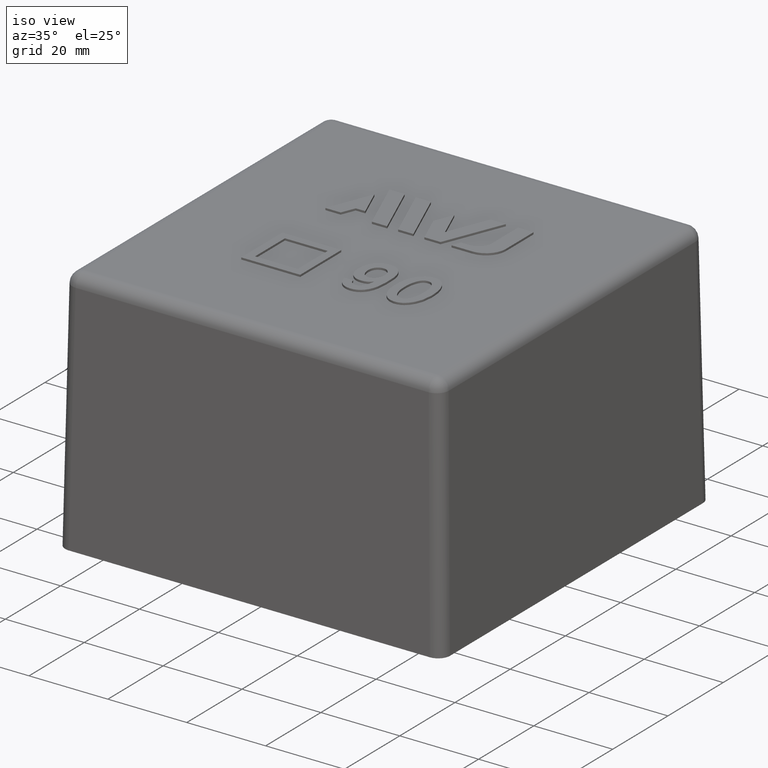
[diagram: clean part render]
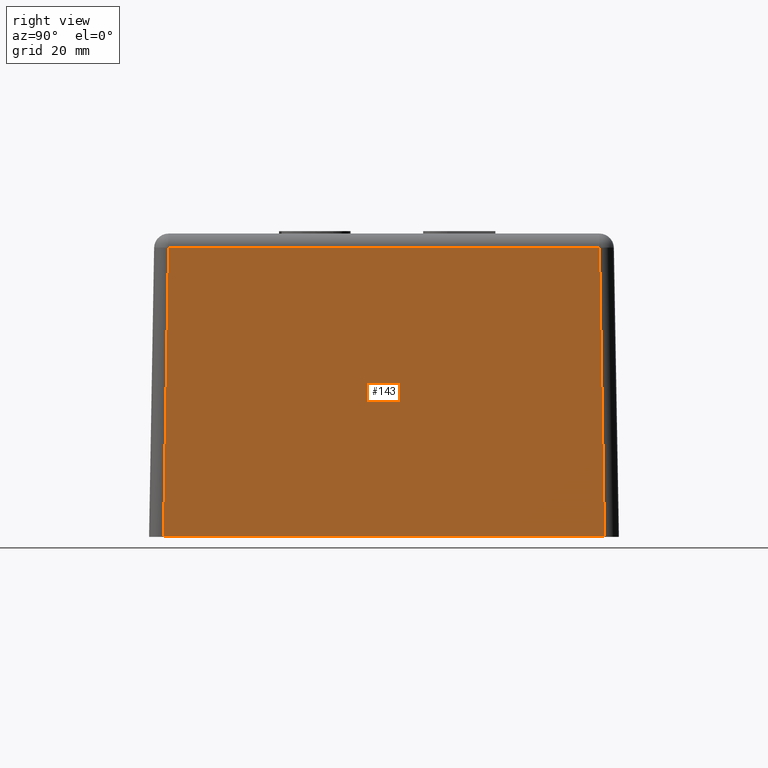
[diagram: tour spotlight — one face highlighted and labeled with its STEP entity id]
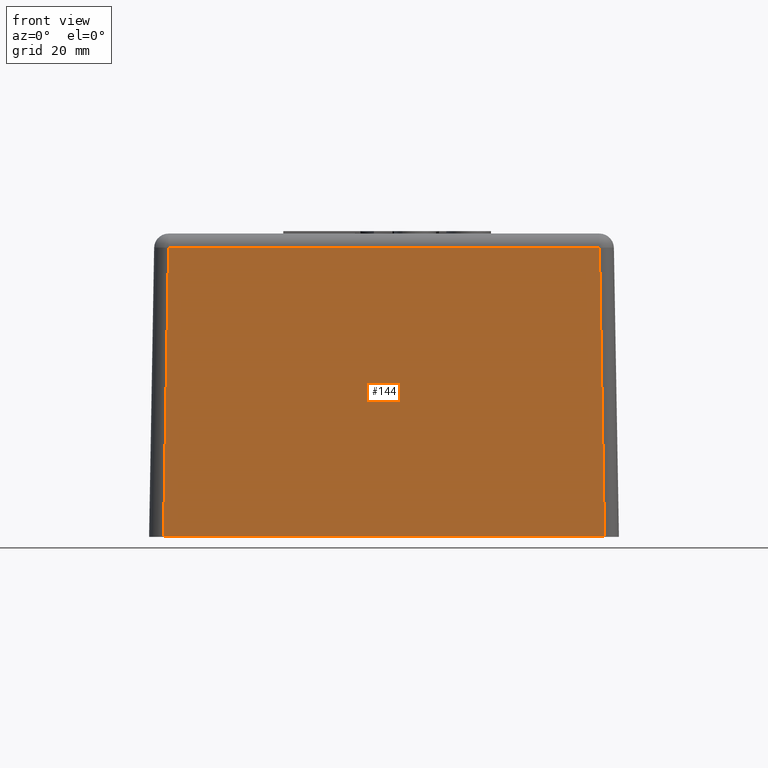
[diagram: tour spotlight — one face highlighted and labeled with its STEP entity id]
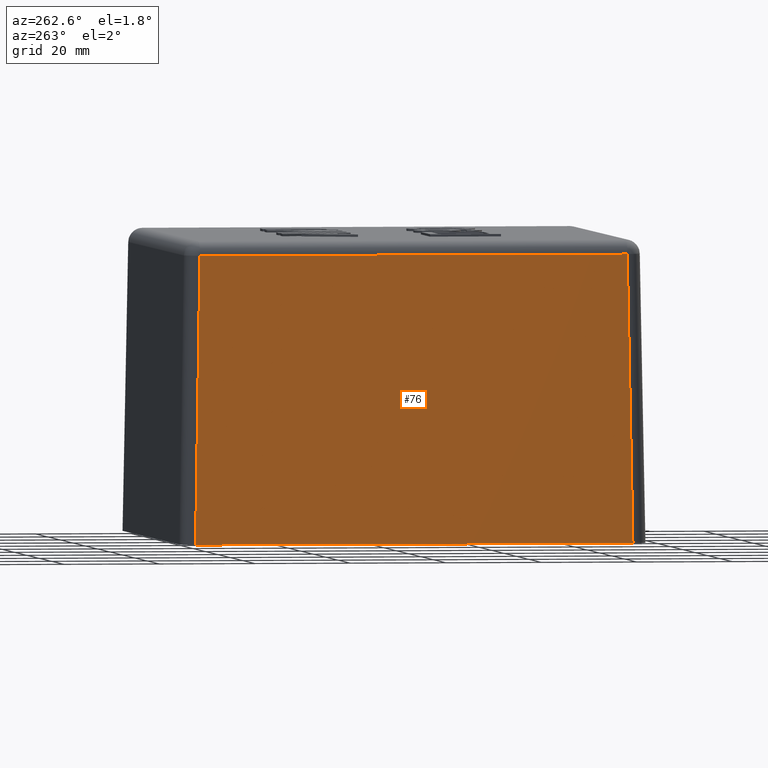
[diagram: tour spotlight — one face highlighted and labeled with its STEP entity id]
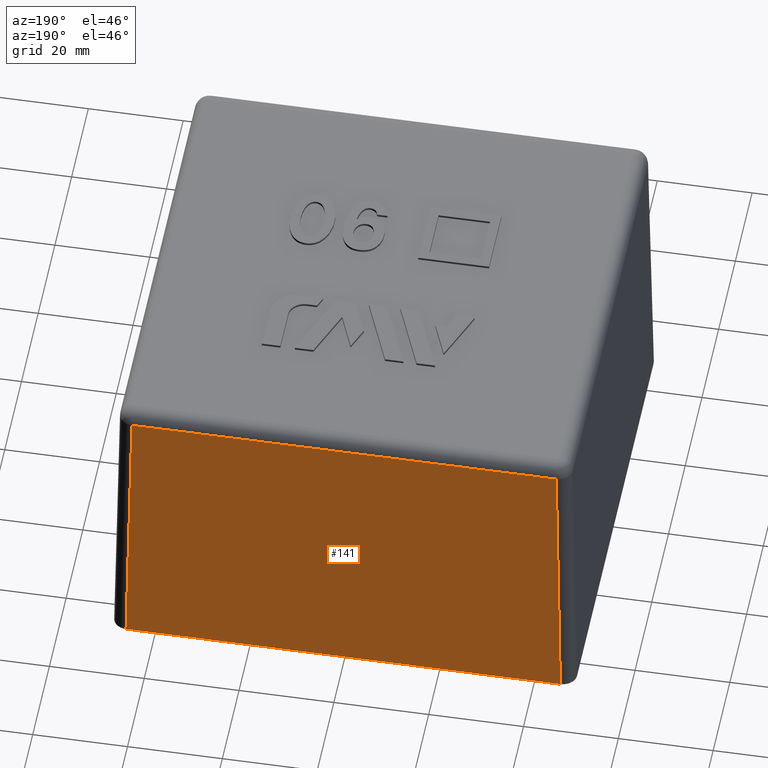
[diagram: tour spotlight — one face highlighted and labeled with its STEP entity id]
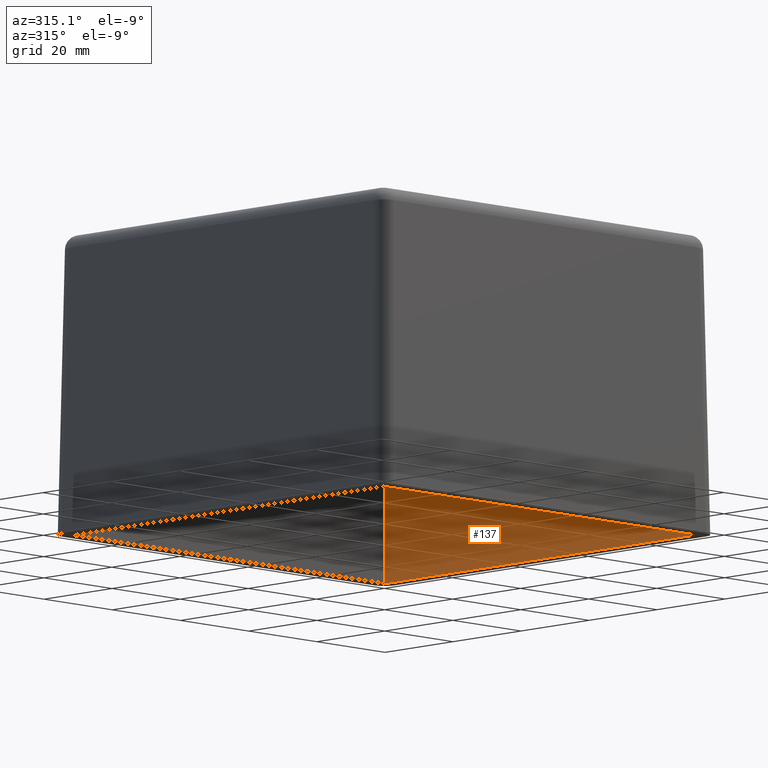
[diagram: tour spotlight — one face highlighted and labeled with its STEP entity id]
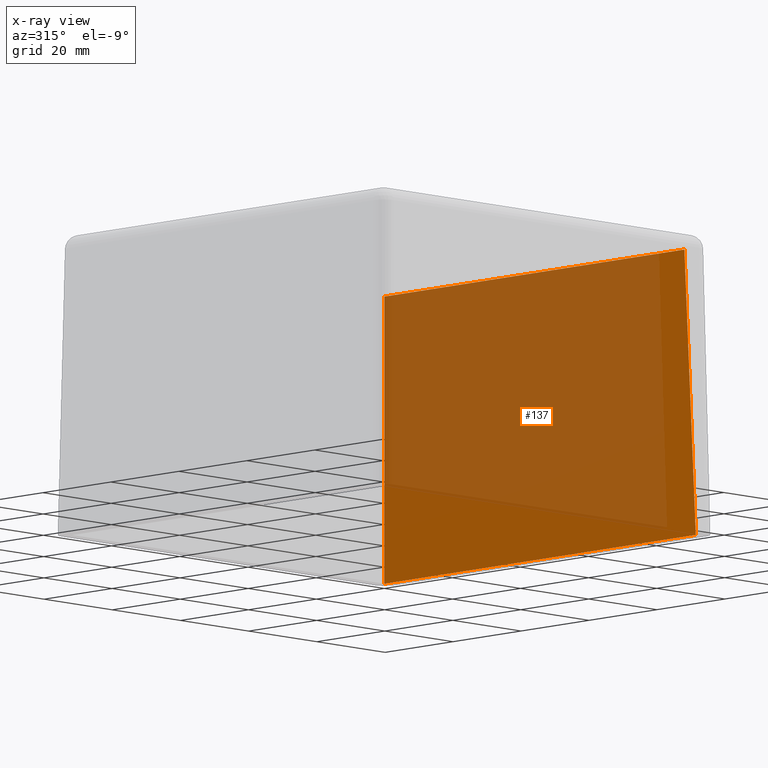
[diagram: x-ray of the same camera — body ghosted, this tour face saturated]
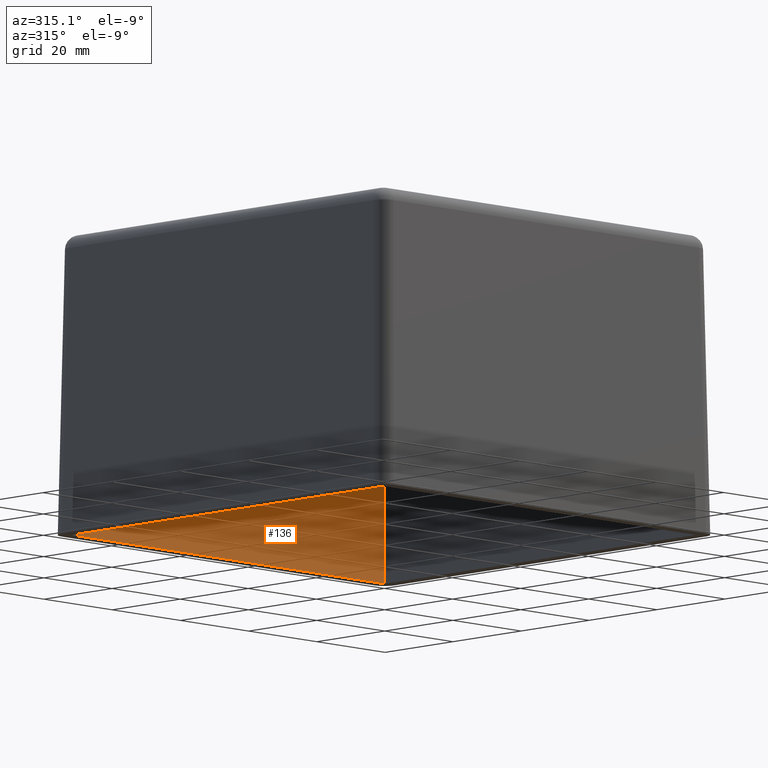
[diagram: tour spotlight — one face highlighted and labeled with its STEP entity id]
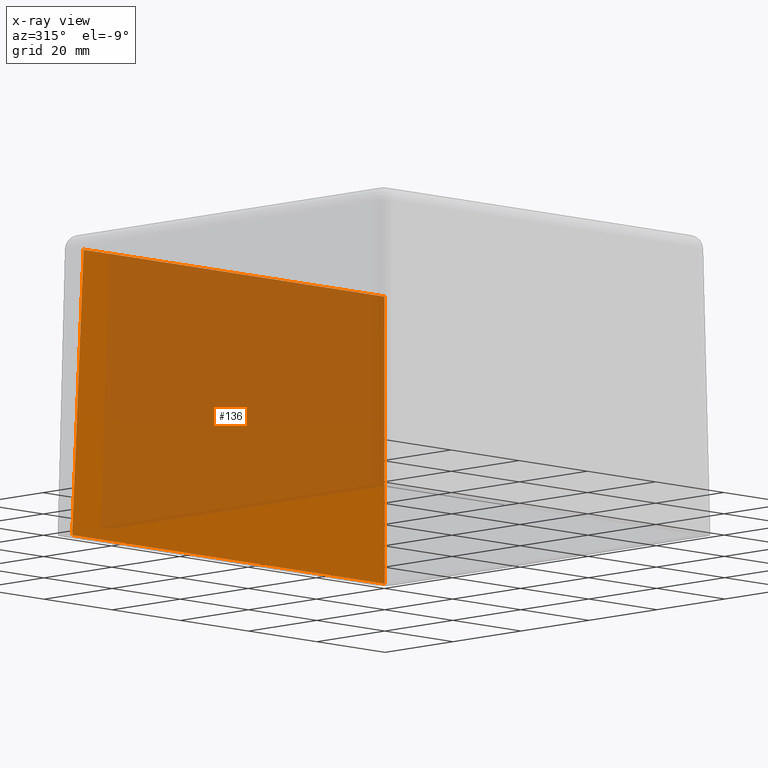
[diagram: x-ray of the same camera — body ghosted, this tour face saturated]
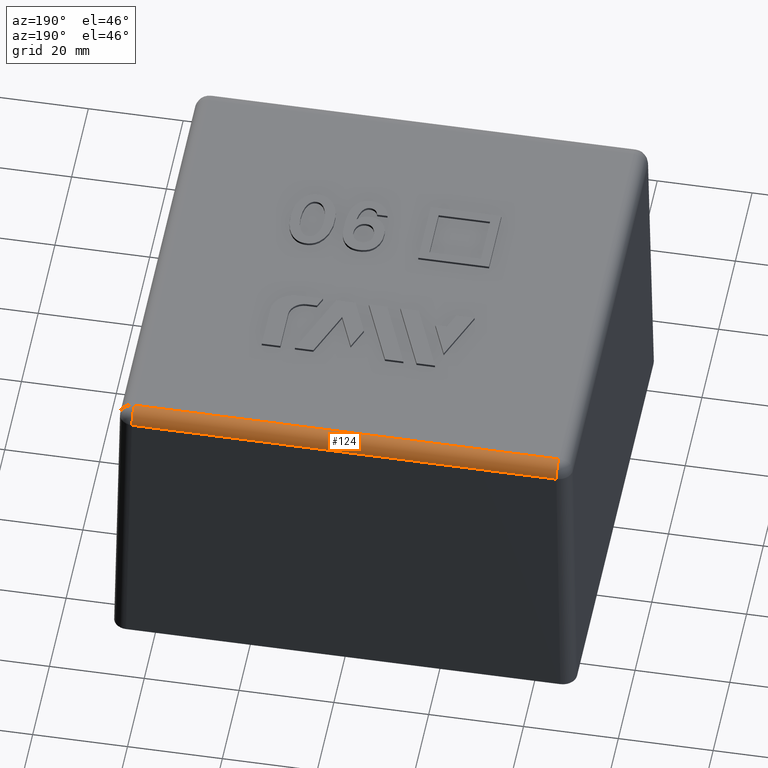
[diagram: tour spotlight — one face highlighted and labeled with its STEP entity id]
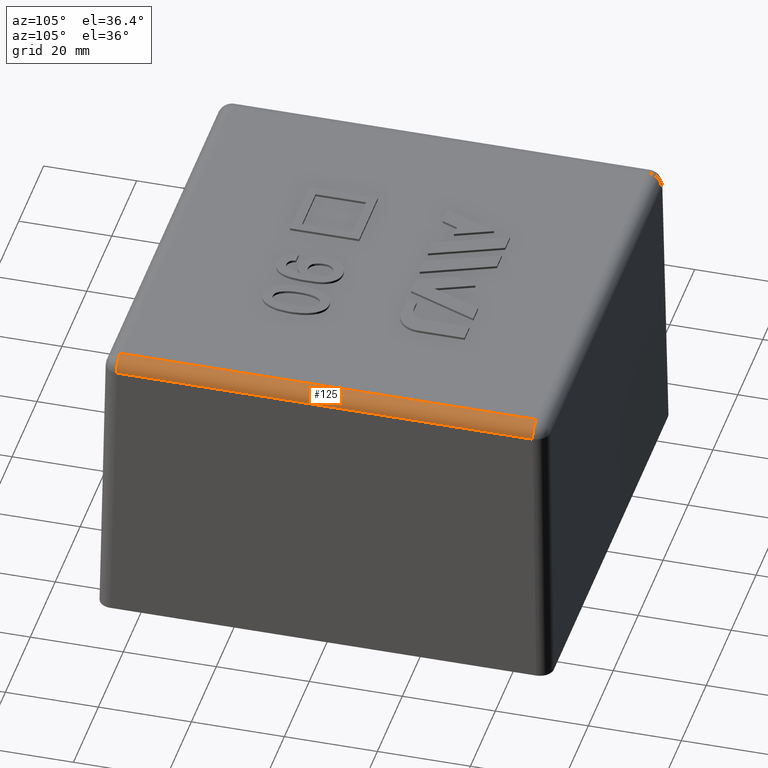
[diagram: tour spotlight — one face highlighted and labeled with its STEP entity id]
A machine part: a face-by-face anatomy tour. The part has 77 B-rep faces; the first image is the clean iso view, then the 8 largest visible faces are spotlighted one at a time (largest first), each with its STEP entity span.

Face 1 — right view, entity #143. In plain terms, the highlighted planar face has unit normal (0.9998, 0, 0.0175).
Definition (entity closure, byte-faithful):
#143 = ADVANCED_FACE( '', ( #299 ), #300, .T. );
#299 = FACE_OUTER_BOUND( '', #471, .T. );
#300 = PLANE( '', #472 );
#471 = EDGE_LOOP( '', ( #1054, #1055, #1056, #1057 ) );
#472 = AXIS2_PLACEMENT_3D( '', #1058, #1059, #1060 );
#1054 = ORIENTED_EDGE( '', *, *, #1301, .T. );
#1055 = ORIENTED_EDGE( '', *, *, #1286, .T. );
#1056 = ORIENTED_EDGE( '', *, *, #1297, .T. );
#1057 = ORIENTED_EDGE( '', *, *, #1318, .T. );
#1058 = CARTESIAN_POINT( '', ( 48.8000000000000, -48.8000000000000, 0.000000000000000 ) );
#1059 = DIRECTION( '', ( 0.999847695156391, 0.000000000000000, 0.0174524064372835 ) );
#1060 = DIRECTION( '', ( 0.0174524064372835, 0.000000000000000, -0.999847695156391 ) );
#1286 = EDGE_CURVE( '', #1543, #1551, #1553, .F. );
#1297 = EDGE_CURVE( '', #1551, #1567, #1568, .F. );
#1301 = EDGE_CURVE( '', #1574, #1543, #1575, .T. );
#1318 = EDGE_CURVE( '', #1567, #1574, #1601, .F. );
#1543 = VERTEX_POINT( '', #2049 );
#1551 = VERTEX_POINT( '', #2058 );
#1553 = LINE( '', #2060, #2061 );
#1567 = VERTEX_POINT( '', #2077 );
#1568 = LINE( '', #2078, #2079 );
#1574 = VERTEX_POINT( '', #2087 );
#1575 = LINE( '', #2088, #2089 );
#1601 = LINE( '', #2129, #2130 );
#2049 = CARTESIAN_POINT( '', ( 47.7517822056444, 44.7522391201752, 60.0523572193119 ) );
#2058 = CARTESIAN_POINT( '', ( 47.7517822056444, -44.7522391201752, 60.0523572193118 ) );
#2060 = CARTESIAN_POINT( '', ( 47.7517822056444, -44.7007878240531, 60.0523572193118 ) );
#2061 = VECTOR( '', #2354, 1000.00000000000 );
#2077 = CARTESIAN_POINT( '', ( 48.8000000000000, -45.8004569145308, 0.000000000000000 ) );
#2078 = CARTESIAN_POINT( '', ( 48.8009133421097, -45.8013702566405, -0.0523253344201976 ) );
#2079 = VECTOR( '', #2381, 1000.00000000000 );
#2087 = CARTESIAN_POINT( '', ( 48.8000000000000, 45.8004569145308, 0.000000000000000 ) );
#2088 = CARTESIAN_POINT( '', ( 48.7711947525225, 45.7716516670532, 1.65025152275220 ) );
#2089 = VECTOR( '', #2387, 1000.00000000000 );
#2129 = CARTESIAN_POINT( '', ( 48.8000000000000, -48.8000000000000, 0.000000000000000 ) );
#2130 = VECTOR( '', #2408, 1000.00000000000 );
#2354 = DIRECTION( '', ( 0.000000000000000, 1.00000000000000, 0.000000000000000 ) );
#2381 = DIRECTION( '', ( -0.0174497491606827, 0.0174497491606827, 0.999695459881887 ) );
#2387 = DIRECTION( '', ( -0.0174497491606827, -0.0174497491606827, 0.999695459881887 ) );
#2408 = DIRECTION( '', ( 0.000000000000000, -1.00000000000000, 0.000000000000000 ) );

Face 2 — front view, entity #144. In plain terms, the highlighted planar face has unit normal (0, -0.9998, 0.0175).
Definition (entity closure, byte-faithful):
#144 = ADVANCED_FACE( '', ( #301 ), #302, .T. );
#301 = FACE_OUTER_BOUND( '', #473, .T. );
#302 = PLANE( '', #474 );
#473 = EDGE_LOOP( '', ( #1061, #1062, #1063, #1064 ) );
#474 = AXIS2_PLACEMENT_3D( '', #1065, #1066, #1067 );
#1061 = ORIENTED_EDGE( '', *, *, #1298, .T. );
#1062 = ORIENTED_EDGE( '', *, *, #1293, .T. );
#1063 = ORIENTED_EDGE( '', *, *, #1295, .T. );
#1064 = ORIENTED_EDGE( '', *, *, #1319, .T. );
#1065 = CARTESIAN_POINT( '', ( -48.8000000000000, -48.8000000000000, 0.000000000000000 ) );
#1066 = DIRECTION( '', ( 0.000000000000000, -0.999847695156391, 0.0174524064372835 ) );
#1067 = DIRECTION( '', ( 0.000000000000000, -0.0174524064372835, -0.999847695156391 ) );
#1293 = EDGE_CURVE( '', #1556, #1560, #1562, .F. );
#1295 = EDGE_CURVE( '', #1560, #1564, #1565, .F. );
#1298 = EDGE_CURVE( '', #1569, #1556, #1570, .T. );
#1319 = EDGE_CURVE( '', #1564, #1569, #1602, .F. );
#1556 = VERTEX_POINT( '', #2064 );
#1560 = VERTEX_POINT( '', #2068 );
#1562 = LINE( '', #2070, #2071 );
#1564 = VERTEX_POINT( '', #2073 );
#1565 = LINE( '', #2074, #2075 );
#1569 = VERTEX_POINT( '', #2080 );
#1570 = LINE( '', #2081, #2082 );
#1602 = LINE( '', #2131, #2132 );
#2064 = CARTESIAN_POINT( '', ( 44.7522391201752, -47.7517822056444, 60.0523572193119 ) );
#2068 = CARTESIAN_POINT( '', ( -44.7522391201752, -47.7517822056444, 60.0523572193118 ) );
#2070 = CARTESIAN_POINT( '', ( -44.7007878240531, -47.7517822056444, 60.0523572193118 ) );
#2071 = VECTOR( '', #2373, 1000.00000000000 );
#2073 = CARTESIAN_POINT( '', ( -45.8004569145308, -48.8000000000000, 0.000000000000000 ) );
#2074 = CARTESIAN_POINT( '', ( -45.8013702566405, -48.8009133421097, -0.0523253344201976 ) );
#2075 = VECTOR( '', #2377, 1000.00000000000 );
#2080 = CARTESIAN_POINT( '', ( 45.8004569145308, -48.8000000000000, 0.000000000000000 ) );
#2081 = CARTESIAN_POINT( '', ( 45.7716516670533, -48.7711947525225, 1.65025152275220 ) );
#2082 = VECTOR( '', #2382, 1000.00000000000 );
#2131 = CARTESIAN_POINT( '', ( -48.8000000000000, -48.8000000000000, 0.000000000000000 ) );
#2132 = VECTOR( '', #2409, 1000.00000000000 );
#2373 = DIRECTION( '', ( 1.00000000000000, 0.000000000000000, 0.000000000000000 ) );
#2377 = DIRECTION( '', ( 0.0174497491606827, 0.0174497491606827, 0.999695459881887 ) );
#2382 = DIRECTION( '', ( -0.0174497491606827, 0.0174497491606827, 0.999695459881887 ) );
#2409 = DIRECTION( '', ( -1.00000000000000, 0.000000000000000, 0.000000000000000 ) );

Face 3 — auxiliary view, entity #76. In plain terms, the highlighted planar face has unit normal (-0.9998, 0, 0.0175).
Definition (entity closure, byte-faithful):
#76 = ADVANCED_FACE( '', ( #163 ), #164, .T. );
#163 = FACE_OUTER_BOUND( '', #332, .T. );
#164 = PLANE( '', #333 );
#332 = EDGE_LOOP( '', ( #541, #542, #543, #544 ) );
#333 = AXIS2_PLACEMENT_3D( '', #545, #546, #547 );
#541 = ORIENTED_EDGE( '', *, *, #1193, .T. );
#542 = ORIENTED_EDGE( '', *, *, #1194, .T. );
#543 = ORIENTED_EDGE( '', *, *, #1195, .T. );
#544 = ORIENTED_EDGE( '', *, *, #1196, .T. );
#545 = CARTESIAN_POINT( '', ( -48.8000000000000, -48.8000000000000, 0.000000000000000 ) );
#546 = DIRECTION( '', ( -0.999847695156391, 0.000000000000000, 0.0174524064372835 ) );
#547 = DIRECTION( '', ( 0.0174524064372835, 0.000000000000000, 0.999847695156391 ) );
#1193 = EDGE_CURVE( '', #1408, #1409, #1410, .T. );
#1194 = EDGE_CURVE( '', #1409, #1411, #1412, .F. );
#1195 = EDGE_CURVE( '', #1411, #1413, #1414, .F. );
#1196 = EDGE_CURVE( '', #1413, #1408, #1415, .F. );
#1408 = VERTEX_POINT( '', #1786 );
#1409 = VERTEX_POINT( '', #1787 );
#1410 = LINE( '', #1788, #1789 );
#1411 = VERTEX_POINT( '', #1790 );
#1412 = LINE( '', #1791, #1792 );
#1413 = VERTEX_POINT( '', #1793 );
#1414 = LINE( '', #1794, #1795 );
#1415 = LINE( '', #1796, #1797 );
#1786 = CARTESIAN_POINT( '', ( -48.8000000000000, -45.8004569145308, 0.000000000000000 ) );
#1787 = CARTESIAN_POINT( '', ( -47.7517822056444, -44.7522391201752, 60.0523572193118 ) );
#1788 = CARTESIAN_POINT( '', ( -48.8009133421097, -45.8013702566405, -0.0523253344201975 ) );
#1789 = VECTOR( '', #2262, 1000.00000000000 );
#1790 = CARTESIAN_POINT( '', ( -47.7517822056444, 44.7522391201752, 60.0523572193119 ) );
#1791 = CARTESIAN_POINT( '', ( -47.7517822056444, 44.7007878240531, 60.0523572193118 ) );
#1792 = VECTOR( '', #2263, 1000.00000000000 );
#1793 = CARTESIAN_POINT( '', ( -48.8000000000000, 45.8004569145308, 0.000000000000000 ) );
#1794 = CARTESIAN_POINT( '', ( -48.7711947525225, 45.7716516670532, 1.65025152275220 ) );
#1795 = VECTOR( '', #2264, 1000.00000000000 );
#1796 = CARTESIAN_POINT( '', ( -48.8000000000000, -48.8000000000000, 0.000000000000000 ) );
#1797 = VECTOR( '', #2265, 1000.00000000000 );
#2262 = DIRECTION( '', ( 0.0174497491606827, 0.0174497491606827, 0.999695459881887 ) );
#2263 = DIRECTION( '', ( 0.000000000000000, -1.00000000000000, 0.000000000000000 ) );
#2264 = DIRECTION( '', ( 0.0174497491606827, -0.0174497491606827, 0.999695459881887 ) );
#2265 = DIRECTION( '', ( 0.000000000000000, 1.00000000000000, 0.000000000000000 ) );

Face 4 — auxiliary view, entity #141. In plain terms, the highlighted planar face has unit normal (0, 0.9998, 0.0175).
Definition (entity closure, byte-faithful):
#141 = ADVANCED_FACE( '', ( #295 ), #296, .T. );
#295 = FACE_OUTER_BOUND( '', #467, .T. );
#296 = PLANE( '', #468 );
#467 = EDGE_LOOP( '', ( #1043, #1044, #1045, #1046 ) );
#468 = AXIS2_PLACEMENT_3D( '', #1047, #1048, #1049 );
#1043 = ORIENTED_EDGE( '', *, *, #1303, .T. );
#1044 = ORIENTED_EDGE( '', *, *, #1284, .T. );
#1045 = ORIENTED_EDGE( '', *, *, #1300, .T. );
#1046 = ORIENTED_EDGE( '', *, *, #1317, .T. );
#1047 = CARTESIAN_POINT( '', ( -48.8000000000000, 48.7999999999999, 0.000000000000000 ) );
#1048 = DIRECTION( '', ( 0.000000000000000, 0.999847695156391, 0.0174524064372835 ) );
#1049 = DIRECTION( '', ( 0.000000000000000, -0.0174524064372835, 0.999847695156391 ) );
#1284 = EDGE_CURVE( '', #1548, #1545, #1550, .F. );
#1300 = EDGE_CURVE( '', #1545, #1572, #1573, .F. );
#1303 = EDGE_CURVE( '', #1577, #1548, #1578, .T. );
#1317 = EDGE_CURVE( '', #1572, #1577, #1600, .F. );
#1545 = VERTEX_POINT( '', #2051 );
#1548 = VERTEX_POINT( '', #2054 );
#1550 = LINE( '', #2056, #2057 );
#1572 = VERTEX_POINT( '', #2084 );
#1573 = LINE( '', #2085, #2086 );
#1577 = VERTEX_POINT( '', #2091 );
#1578 = LINE( '', #2092, #2093 );
#1600 = LINE( '', #2127, #2128 );
#2051 = CARTESIAN_POINT( '', ( 44.7522391201752, 47.7517822056443, 60.0523572193119 ) );
#2054 = CARTESIAN_POINT( '', ( -44.7522391201752, 47.7517822056443, 60.0523572193118 ) );
#2056 = CARTESIAN_POINT( '', ( 44.7007878240531, 47.7517822056443, 60.0523572193118 ) );
#2057 = VECTOR( '', #2350, 1000.00000000000 );
#2084 = CARTESIAN_POINT( '', ( 45.8004569145308, 48.7999999999999, 0.000000000000000 ) );
#2085 = CARTESIAN_POINT( '', ( 45.7716516670533, 48.7711947525224, 1.65025152275220 ) );
#2086 = VECTOR( '', #2386, 1000.00000000000 );
#2091 = CARTESIAN_POINT( '', ( -45.8004569145308, 48.7999999999999, 0.000000000000000 ) );
#2092 = CARTESIAN_POINT( '', ( -45.8013702566405, 48.8009133421096, -0.0523253344201975 ) );
#2093 = VECTOR( '', #2391, 1000.00000000000 );
#2127 = CARTESIAN_POINT( '', ( -48.8000000000000, 48.7999999999999, 0.000000000000000 ) );
#2128 = VECTOR( '', #2407, 1000.00000000000 );
#2350 = DIRECTION( '', ( -1.00000000000000, 0.000000000000000, 0.000000000000000 ) );
#2386 = DIRECTION( '', ( -0.0174497491606827, -0.0174497491606827, 0.999695459881887 ) );
#2391 = DIRECTION( '', ( 0.0174497491606827, -0.0174497491606827, 0.999695459881887 ) );
#2407 = DIRECTION( '', ( 1.00000000000000, 0.000000000000000, 0.000000000000000 ) );

Face 5 — auxiliary view, entity #137. An x-ray twin of the same camera follows (body ghosted, this face saturated) — the face is partly hidden behind the body. In plain terms, the highlighted planar face has unit normal (0.9996, 0, 0.0279).
Definition (entity closure, byte-faithful):
#137 = ADVANCED_FACE( '', ( #286 ), #287, .F. );
#286 = FACE_OUTER_BOUND( '', #458, .T. );
#287 = PLANE( '', #459 );
#458 = EDGE_LOOP( '', ( #1007, #1008, #1009, #1010 ) );
#459 = AXIS2_PLACEMENT_3D( '', #1011, #1012, #1013 );
#1007 = ORIENTED_EDGE( '', *, *, #1312, .F. );
#1008 = ORIENTED_EDGE( '', *, *, #1313, .F. );
#1009 = ORIENTED_EDGE( '', *, *, #1307, .T. );
#1010 = ORIENTED_EDGE( '', *, *, #1310, .T. );
#1011 = CARTESIAN_POINT( '', ( 45.8000000000000, -45.8000000000000, 0.000000000000000 ) );
#1012 = DIRECTION( '', ( 0.999610115040354, 0.000000000000000, 0.0279216387235689 ) );
#1013 = DIRECTION( '', ( 0.0279216387235689, 0.000000000000000, -0.999610115040354 ) );
#1307 = EDGE_CURVE( '', #1585, #1583, #1586, .F. );
#1310 = EDGE_CURVE( '', #1583, #1588, #1591, .T. );
#1312 = EDGE_CURVE( '', #1593, #1588, #1594, .F. );
#1313 = EDGE_CURVE( '', #1585, #1593, #1595, .T. );
#1583 = VERTEX_POINT( '', #2099 );
#1585 = VERTEX_POINT( '', #2102 );
#1586 = LINE( '', #2103, #2104 );
#1588 = VERTEX_POINT( '', #2107 );
#1591 = LINE( '', #2111, #2112 );
#1593 = VERTEX_POINT( '', #2115 );
#1594 = LINE( '', #2116, #2117 );
#1595 = LINE( '', #2118, #2119 );
#2099 = CARTESIAN_POINT( '', ( 44.1240482482047, 44.1240482482047, 60.0000000000000 ) );
#2102 = CARTESIAN_POINT( '', ( 44.1240482482047, -44.1240482482048, 60.0000000000000 ) );
#2103 = CARTESIAN_POINT( '', ( 44.1240482482047, -45.8000000000000, 60.0000000000000 ) );
#2104 = VECTOR( '', #2397, 1000.00000000000 );
#2107 = CARTESIAN_POINT( '', ( 45.8000000000000, 45.8000000000000, 0.000000000000000 ) );
#2111 = CARTESIAN_POINT( '', ( 45.7286426310175, 45.7286426310175, 2.55463329082242 ) );
#2112 = VECTOR( '', #2400, 1000.00000000000 );
#2115 = CARTESIAN_POINT( '', ( 45.8000000000000, -45.8000000000000, 0.000000000000000 ) );
#2116 = CARTESIAN_POINT( '', ( 45.8000000000000, -45.8000000000000, 0.000000000000000 ) );
#2117 = VECTOR( '', #2402, 1000.00000000000 );
#2118 = CARTESIAN_POINT( '', ( 45.8000000000000, -45.8000000000000, 1.93518879567753E-016 ) );
#2119 = VECTOR( '', #2403, 1000.00000000000 );
#2397 = DIRECTION( '', ( 0.000000000000000, -1.00000000000000, 0.000000000000000 ) );
#2400 = DIRECTION( '', ( 0.0279107609787204, 0.0279107609787204, -0.999220685756243 ) );
#2402 = DIRECTION( '', ( 0.000000000000000, -1.00000000000000, 0.000000000000000 ) );
#2403 = DIRECTION( '', ( 0.0279107609787204, -0.0279107609787204, -0.999220685756243 ) );

Face 6 — auxiliary view, entity #136. An x-ray twin of the same camera follows (body ghosted, this face saturated) — the face is partly hidden behind the body. In plain terms, the highlighted planar face has unit normal (0, 0.9996, 0.0279).
Definition (entity closure, byte-faithful):
#136 = ADVANCED_FACE( '', ( #284 ), #285, .F. );
#284 = FACE_OUTER_BOUND( '', #456, .T. );
#285 = PLANE( '', #457 );
#456 = EDGE_LOOP( '', ( #1000, #1001, #1002, #1003 ) );
#457 = AXIS2_PLACEMENT_3D( '', #1004, #1005, #1006 );
#1000 = ORIENTED_EDGE( '', *, *, #1309, .F. );
#1001 = ORIENTED_EDGE( '', *, *, #1310, .F. );
#1002 = ORIENTED_EDGE( '', *, *, #1306, .T. );
#1003 = ORIENTED_EDGE( '', *, *, #1311, .T. );
#1004 = CARTESIAN_POINT( '', ( -45.8000000000000, 45.8000000000000, 0.000000000000000 ) );
#1005 = DIRECTION( '', ( 0.000000000000000, 0.999610115040354, 0.0279216387235689 ) );
#1006 = DIRECTION( '', ( 0.000000000000000, -0.0279216387235689, 0.999610115040354 ) );
#1306 = EDGE_CURVE( '', #1583, #1580, #1584, .F. );
#1309 = EDGE_CURVE( '', #1588, #1589, #1590, .F. );
#1310 = EDGE_CURVE( '', #1583, #1588, #1591, .T. );
#1311 = EDGE_CURVE( '', #1580, #1589, #1592, .T. );
#1580 = VERTEX_POINT( '', #2095 );
#1583 = VERTEX_POINT( '', #2099 );
#1584 = LINE( '', #2100, #2101 );
#1588 = VERTEX_POINT( '', #2107 );
#1589 = VERTEX_POINT( '', #2108 );
#1590 = LINE( '', #2109, #2110 );
#1591 = LINE( '', #2111, #2112 );
#1592 = LINE( '', #2113, #2114 );
#2095 = CARTESIAN_POINT( '', ( -44.1240482482048, 44.1240482482047, 60.0000000000000 ) );
#2099 = CARTESIAN_POINT( '', ( 44.1240482482047, 44.1240482482047, 60.0000000000000 ) );
#2100 = CARTESIAN_POINT( '', ( -45.8000000000000, 44.1240482482047, 60.0000000000000 ) );
#2101 = VECTOR( '', #2396, 1000.00000000000 );
#2107 = CARTESIAN_POINT( '', ( 45.8000000000000, 45.8000000000000, 0.000000000000000 ) );
#2108 = CARTESIAN_POINT( '', ( -45.8000000000000, 45.8000000000000, 0.000000000000000 ) );
#2109 = CARTESIAN_POINT( '', ( -45.8000000000000, 45.8000000000000, 0.000000000000000 ) );
#2110 = VECTOR( '', #2399, 1000.00000000000 );
#2111 = CARTESIAN_POINT( '', ( 45.7286426310175, 45.7286426310175, 2.55463329082242 ) );
#2112 = VECTOR( '', #2400, 1000.00000000000 );
#2113 = CARTESIAN_POINT( '', ( -45.7286426310175, 45.7286426310175, 2.55463329082242 ) );
#2114 = VECTOR( '', #2401, 1000.00000000000 );
#2396 = DIRECTION( '', ( 1.00000000000000, 0.000000000000000, 0.000000000000000 ) );
#2399 = DIRECTION( '', ( 1.00000000000000, 0.000000000000000, 0.000000000000000 ) );
#2400 = DIRECTION( '', ( 0.0279107609787204, 0.0279107609787204, -0.999220685756243 ) );
#2401 = DIRECTION( '', ( -0.0279107609787204, 0.0279107609787204, -0.999220685756243 ) );

Face 7 — auxiliary view, entity #124. In plain terms, the highlighted cylindrical surface (edge-blend (fillet) strip) has radius 3 mm, axis along (1, 0, 0).
Definition (entity closure, byte-faithful):
#124 = ADVANCED_FACE( '', ( #260 ), #261, .T. );
#260 = FACE_OUTER_BOUND( '', #432, .T. );
#261 = CYLINDRICAL_SURFACE( '', #433, 3.00000000000000 );
#432 = EDGE_LOOP( '', ( #919, #920, #921, #922 ) );
#433 = AXIS2_PLACEMENT_3D( '', #923, #924, #925 );
#919 = ORIENTED_EDGE( '', *, *, #1283, .T. );
#920 = ORIENTED_EDGE( '', *, *, #1158, .F. );
#921 = ORIENTED_EDGE( '', *, *, #1282, .F. );
#922 = ORIENTED_EDGE( '', *, *, #1284, .F. );
#923 = CARTESIAN_POINT( '', ( -48.8000000000000, 44.7522391201752, 60.0000000000000 ) );
#924 = DIRECTION( '', ( 1.00000000000000, 0.000000000000000, 0.000000000000000 ) );
#925 = DIRECTION( '', ( 0.000000000000000, 0.000000000000000, 1.00000000000000 ) );
#1158 = EDGE_CURVE( '', #1337, #1339, #1340, .F. );
#1282 = EDGE_CURVE( '', #1545, #1337, #1547, .T. );
#1283 = EDGE_CURVE( '', #1548, #1339, #1549, .T. );
#1284 = EDGE_CURVE( '', #1548, #1545, #1550, .F. );
#1337 = VERTEX_POINT( '', #1662 );
#1339 = VERTEX_POINT( '', #1665 );
#1340 = LINE( '', #1666, #1667 );
#1545 = VERTEX_POINT( '', #2051 );
#1547 = CIRCLE( '', #2053, 3.00000000000000 );
#1548 = VERTEX_POINT( '', #2054 );
#1549 = CIRCLE( '', #2055, 3.00000000000000 );
#1550 = LINE( '', #2056, #2057 );
#1662 = CARTESIAN_POINT( '', ( 44.7522391201752, 44.7522391201752, 63.0000000000000 ) );
#1665 = CARTESIAN_POINT( '', ( -44.7522391201752, 44.7522391201752, 63.0000000000000 ) );
#1666 = CARTESIAN_POINT( '', ( -44.7007878240531, 44.7522391201752, 63.0000000000000 ) );
#1667 = VECTOR( '', #2228, 1000.00000000000 );
#2051 = CARTESIAN_POINT( '', ( 44.7522391201752, 47.7517822056443, 60.0523572193119 ) );
#2053 = AXIS2_PLACEMENT_3D( '', #2344, #2345, #2346 );
#2054 = CARTESIAN_POINT( '', ( -44.7522391201752, 47.7517822056443, 60.0523572193118 ) );
#2055 = AXIS2_PLACEMENT_3D( '', #2347, #2348, #2349 );
#2056 = CARTESIAN_POINT( '', ( 44.7007878240531, 47.7517822056443, 60.0523572193118 ) );
#2057 = VECTOR( '', #2350, 1000.00000000000 );
#2228 = DIRECTION( '', ( 1.00000000000000, 0.000000000000000, 0.000000000000000 ) );
#2344 = CARTESIAN_POINT( '', ( 44.7522391201752, 44.7522391201752, 60.0000000000000 ) );
#2345 = DIRECTION( '', ( 1.00000000000000, 8.07458957484740E-017, -4.62592926927148E-015 ) );
#2346 = DIRECTION( '', ( -4.62592926927148E-015, 0.000000000000000, -1.00000000000000 ) );
#2347 = CARTESIAN_POINT( '', ( -44.7522391201752, 44.7522391201752, 60.0000000000000 ) );
#2348 = DIRECTION( '', ( 1.00000000000000, 0.000000000000000, 0.000000000000000 ) );
#2349 = DIRECTION( '', ( 0.000000000000000, 0.000000000000000, -1.00000000000000 ) );
#2350 = DIRECTION( '', ( -1.00000000000000, 0.000000000000000, 0.000000000000000 ) );

Face 8 — auxiliary view, entity #125. In plain terms, the highlighted cylindrical surface (edge-blend (fillet) strip) has radius 3 mm, axis along (0, -1, 0).
Definition (entity closure, byte-faithful):
#125 = ADVANCED_FACE( '', ( #262 ), #263, .T. );
#262 = FACE_OUTER_BOUND( '', #434, .T. );
#263 = CYLINDRICAL_SURFACE( '', #435, 3.00000000000000 );
#434 = EDGE_LOOP( '', ( #926, #927, #928, #929 ) );
#435 = AXIS2_PLACEMENT_3D( '', #930, #931, #932 );
#926 = ORIENTED_EDGE( '', *, *, #1285, .T. );
#927 = ORIENTED_EDGE( '', *, *, #1286, .F. );
#928 = ORIENTED_EDGE( '', *, *, #1280, .F. );
#929 = ORIENTED_EDGE( '', *, *, #1157, .F. );
#930 = CARTESIAN_POINT( '', ( 44.7522391201752, -48.8000000000000, 60.0000000000000 ) );
#931 = DIRECTION( '', ( 0.000000000000000, -1.00000000000000, 0.000000000000000 ) );
#932 = DIRECTION( '', ( 0.000000000000000, 0.000000000000000, 1.00000000000000 ) );
#1157 = EDGE_CURVE( '', #1335, #1337, #1338, .F. );
#1280 = EDGE_CURVE( '', #1337, #1543, #1544, .T. );
#1285 = EDGE_CURVE( '', #1335, #1551, #1552, .T. );
#1286 = EDGE_CURVE( '', #1543, #1551, #1553, .F. );
#1335 = VERTEX_POINT( '', #1659 );
#1337 = VERTEX_POINT( '', #1662 );
#1338 = LINE( '', #1663, #1664 );
#1543 = VERTEX_POINT( '', #2049 );
#1544 = CIRCLE( '', #2050, 3.00000000000000 );
#1551 = VERTEX_POINT( '', #2058 );
#1552 = CIRCLE( '', #2059, 3.00000000000000 );
#1553 = LINE( '', #2060, #2061 );
#1659 = CARTESIAN_POINT( '', ( 44.7522391201752, -44.7522391201752, 63.0000000000000 ) );
#1662 = CARTESIAN_POINT( '', ( 44.7522391201752, 44.7522391201752, 63.0000000000000 ) );
#1663 = CARTESIAN_POINT( '', ( 44.7522391201752, 44.7007878240531, 63.0000000000000 ) );
#1664 = VECTOR( '', #2227, 1000.00000000000 );
#2049 = CARTESIAN_POINT( '', ( 47.7517822056444, 44.7522391201752, 60.0523572193119 ) );
#2050 = AXIS2_PLACEMENT_3D( '', #2338, #2339, #2340 );
#2058 = CARTESIAN_POINT( '', ( 47.7517822056444, -44.7522391201752, 60.0523572193118 ) );
#2059 = AXIS2_PLACEMENT_3D( '', #2351, #2352, #2353 );
#2060 = CARTESIAN_POINT( '', ( 47.7517822056444, -44.7007878240531, 60.0523572193118 ) );
#2061 = VECTOR( '', #2354, 1000.00000000000 );
#2227 = DIRECTION( '', ( 0.000000000000000, -1.00000000000000, 0.000000000000000 ) );
#2338 = CARTESIAN_POINT( '', ( 44.7522391201752, 44.7522391201752, 60.0000000000000 ) );
#2339 = DIRECTION( '', ( 2.31331696401416E-015, 1.00000000000000, 0.000000000000000 ) );
#2340 = DIRECTION( '', ( -1.00000000000000, 2.31331696401416E-015, 0.000000000000000 ) );
#2351 = CARTESIAN_POINT( '', ( 44.7522391201752, -44.7522391201752, 60.0000000000000 ) );
#2352 = DIRECTION( '', ( 0.000000000000000, 1.00000000000000, 0.000000000000000 ) );
#2353 = DIRECTION( '', ( 0.000000000000000, 0.000000000000000, 1.00000000000000 ) );
#2354 = DIRECTION( '', ( 0.000000000000000, 1.00000000000000, 0.000000000000000 ) );